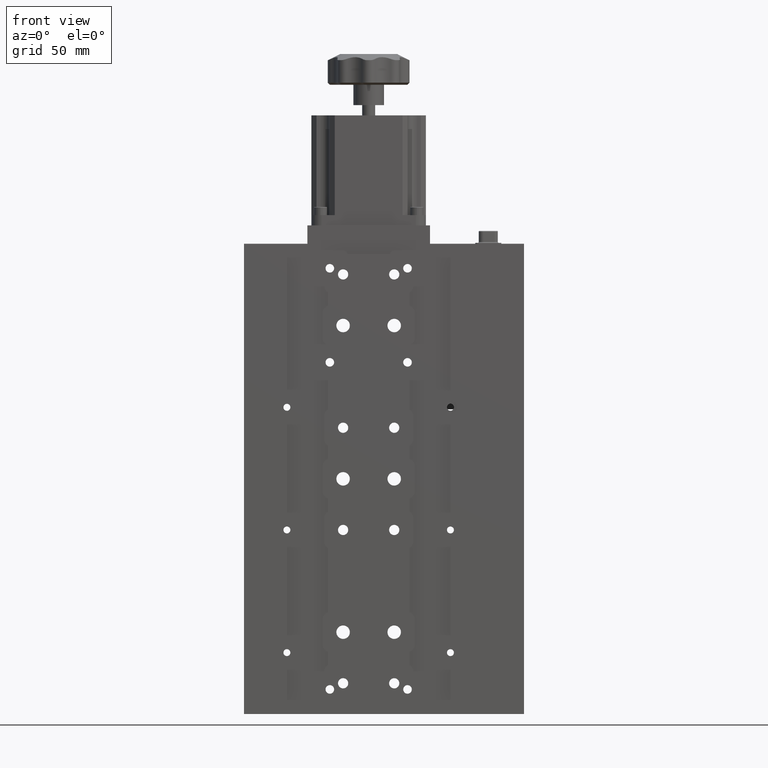
[diagram: clean part render]
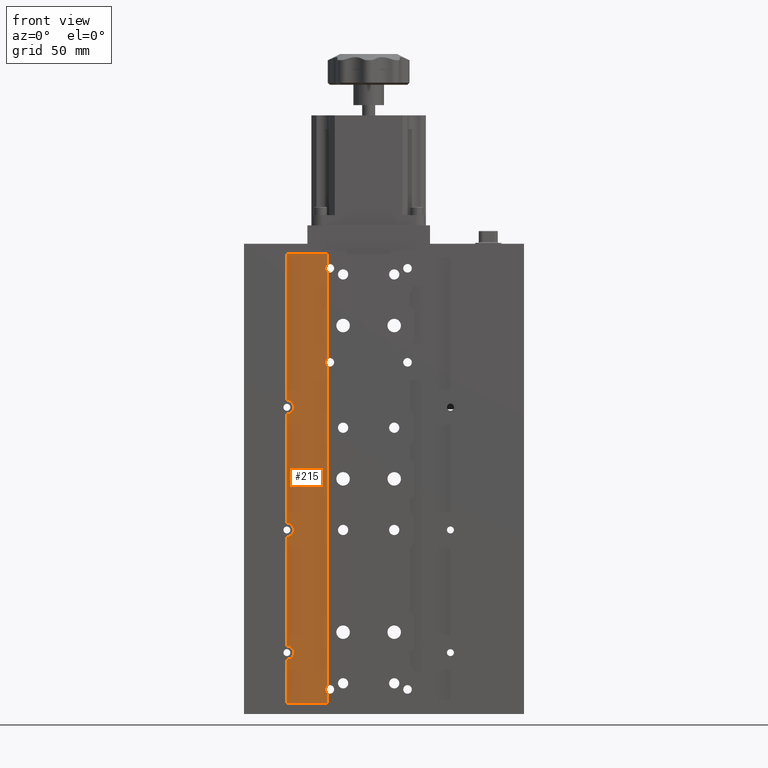
[diagram: same view with one face highlighted and labeled with its STEP entity id]
A machine part, front view. The second image highlights one B-rep face of the part: STEP entity #215.
In plain terms, the highlighted planar face has unit normal (-0, 1, 0).
Its self-contained STEP definition (entity closure, byte-faithful):
#215 = ADVANCED_FACE ( 'NONE', ( #33118 ), #24388, .F. ) ;
#288 = CARTESIAN_POINT ( 'NONE',  ( -50.61080835603990400, -8.917650620647954400, 35.00000000000000700 ) ) ;
#973 = EDGE_CURVE ( 'NONE', #18560, #3282, #33383, .T. ) ;
#1189 = ORIENTED_EDGE ( 'NONE', *, *, #17948, .T. ) ;
#1246 = CIRCLE ( 'NONE', #11401, 2.099999999999990800 ) ;
#1788 = EDGE_CURVE ( 'NONE', #3776, #18560, #1246, .T. ) ;
#2381 = LINE ( 'NONE', #27550, #17168 ) ;
#3166 = LINE ( 'NONE', #24925, #25836 ) ;
#3273 = DIRECTION ( 'NONE',  ( 0.0000000000000000000, 0.0000000000000000000, 1.000000000000000000 ) ) ;
#3282 = VERTEX_POINT ( 'NONE', #31381 ) ;
#3353 = EDGE_CURVE ( 'NONE', #27279, #25282, #20504, .T. ) ;
#3776 = VERTEX_POINT ( 'NONE', #24983 ) ;
#3837 = DIRECTION ( 'NONE',  ( -3.689503073101735200E-032, 1.000000000000000000, 0.0000000000000000000 ) ) ;
#3891 = CARTESIAN_POINT ( 'NONE',  ( -29.61080835603996400, -8.917650620647949100, 103.0000000000000000 ) ) ;
#3993 = EDGE_CURVE ( 'NONE', #30300, #16892, #30594, .T. ) ;
#4022 = VECTOR ( 'NONE', #19162, 1000.000000000000000 ) ;
#4178 = CARTESIAN_POINT ( 'NONE',  ( -29.61080835603995700, -8.917650620647943800, -103.0000000000000000 ) ) ;
#4345 = EDGE_CURVE ( 'NONE', #22951, #3776, #34682, .T. ) ;
#4515 = CARTESIAN_POINT ( 'NONE',  ( -50.61080835603996100, -8.917650620647949100, -110.0000000000000000 ) ) ;
#4702 = CARTESIAN_POINT ( 'NONE',  ( -50.61080835603996100, -8.917650620647949100, 38.25000000000000000 ) ) ;
#5005 = CARTESIAN_POINT ( 'NONE',  ( -30.61080835603995700, -8.917650620647949100, -104.8466185312619200 ) ) ;
#5020 = CARTESIAN_POINT ( 'NONE',  ( -50.61080835603996100, -8.917650620647954400, 110.0000000000000000 ) ) ;
#5247 = AXIS2_PLACEMENT_3D ( 'NONE', #9517, #30194, #12472 ) ;
#5400 = CARTESIAN_POINT ( 'NONE',  ( -29.61080835603996400, -8.917650620647943800, 57.00000000000000700 ) ) ;
#5629 = ORIENTED_EDGE ( 'NONE', *, *, #23997, .T. ) ;
#6175 = VERTEX_POINT ( 'NONE', #4515 ) ;
#6330 = EDGE_CURVE ( 'NONE', #33207, #34487, #36355, .T. ) ;
#6700 = CARTESIAN_POINT ( 'NONE',  ( -30.61080835603995700, -8.917650620647949100, 104.8466185312619200 ) ) ;
#6855 = DIRECTION ( 'NONE',  ( 0.0000000000000000000, 0.0000000000000000000, 1.000000000000000000 ) ) ;
#7109 = DIRECTION ( 'NONE',  ( 0.0000000000000000000, 0.0000000000000000000, 1.000000000000000000 ) ) ;
#7180 = ORIENTED_EDGE ( 'NONE', *, *, #20699, .T. ) ;
#7182 = DIRECTION ( 'NONE',  ( 0.0000000000000000000, 0.0000000000000000000, -1.000000000000000000 ) ) ;
#7416 = ORIENTED_EDGE ( 'NONE', *, *, #1788, .T. ) ;
#7817 = VECTOR ( 'NONE', #29505, 1000.000000000000000 ) ;
#8369 = DIRECTION ( 'NONE',  ( 0.0000000000000000000, 0.0000000000000000000, 1.000000000000000000 ) ) ;
#8756 = CARTESIAN_POINT ( 'NONE',  ( -30.61080835603996400, -8.917650620647949100, -150.0780488547035000 ) ) ;
#9289 = ORIENTED_EDGE ( 'NONE', *, *, #6330, .T. ) ;
#9517 = CARTESIAN_POINT ( 'NONE',  ( -50.61080835603990400, -8.917650620647949100, -84.99999999999998600 ) ) ;
#9725 = DIRECTION ( 'NONE',  ( 1.000000000000000000, -3.689503073101735200E-032, 0.0000000000000000000 ) ) ;
#10942 = DIRECTION ( 'NONE',  ( 0.0000000000000000000, 0.0000000000000000000, -1.000000000000000000 ) ) ;
#11158 = CARTESIAN_POINT ( 'NONE',  ( -30.61080835603995700, -8.917650620647943800, -110.0000000000000000 ) ) ;
#11307 = VECTOR ( 'NONE', #11707, 1000.000000000000000 ) ;
#11401 = AXIS2_PLACEMENT_3D ( 'NONE', #5400, #26060, #8369 ) ;
#11707 = DIRECTION ( 'NONE',  ( 0.0000000000000000000, 0.0000000000000000000, 1.000000000000000000 ) ) ;
#12000 = ORIENTED_EDGE ( 'NONE', *, *, #12457, .T. ) ;
#12243 = LINE ( 'NONE', #8756, #11307 ) ;
#12457 = EDGE_CURVE ( 'NONE', #37873, #33207, #20998, .T. ) ;
#12472 = DIRECTION ( 'NONE',  ( 0.0000000000000000000, 0.0000000000000000000, 1.000000000000000000 ) ) ;
#13178 = DIRECTION ( 'NONE',  ( 0.0000000000000000000, 0.0000000000000000000, 1.000000000000000000 ) ) ;
#13842 = ORIENTED_EDGE ( 'NONE', *, *, #973, .T. ) ;
#13870 = CARTESIAN_POINT ( 'NONE',  ( -50.61080835603996100, -8.917650620647954400, -28.24999999999998200 ) ) ;
#14129 = DIRECTION ( 'NONE',  ( -3.689503073101735200E-032, 1.000000000000000000, 0.0000000000000000000 ) ) ;
#14721 = DIRECTION ( 'NONE',  ( 0.0000000000000000000, 0.0000000000000000000, 1.000000000000000000 ) ) ;
#14823 = VECTOR ( 'NONE', #35482, 1000.000000000000000 ) ;
#15946 = CARTESIAN_POINT ( 'NONE',  ( -50.61080835603996100, -8.917650620647954400, -21.74999999999999300 ) ) ;
#16150 = CIRCLE ( 'NONE', #18986, 2.099999999999990800 ) ;
#16702 = EDGE_CURVE ( 'NONE', #3282, #30300, #16150, .T. ) ;
#16892 = VERTEX_POINT ( 'NONE', #28324 ) ;
#17168 = VECTOR ( 'NONE', #9725, 1000.000000000000000 ) ;
#17948 = EDGE_CURVE ( 'NONE', #32640, #22951, #23857, .T. ) ;
#18071 = ORIENTED_EDGE ( 'NONE', *, *, #37714, .T. ) ;
#18547 = ORIENTED_EDGE ( 'NONE', *, *, #22078, .T. ) ;
#18560 = VERTEX_POINT ( 'NONE', #22340 ) ;
#18855 = VERTEX_POINT ( 'NONE', #30353 ) ;
#18907 = VECTOR ( 'NONE', #14721, 1000.000000000000000 ) ;
#18986 = AXIS2_PLACEMENT_3D ( 'NONE', #3891, #24571, #6855 ) ;
#19162 = DIRECTION ( 'NONE',  ( 1.000000000000000000, -3.689503073101735200E-032, 0.0000000000000000000 ) ) ;
#19184 = ORIENTED_EDGE ( 'NONE', *, *, #3353, .T. ) ;
#19655 = ORIENTED_EDGE ( 'NONE', *, *, #28209, .F. ) ;
#20270 = ORIENTED_EDGE ( 'NONE', *, *, #16702, .T. ) ;
#20322 = VERTEX_POINT ( 'NONE', #25978 ) ;
#20504 = CIRCLE ( 'NONE', #23504, 3.249999999999996000 ) ;
#20546 = CARTESIAN_POINT ( 'NONE',  ( -50.61080835603996100, -8.917650620647954400, 110.0000000000000000 ) ) ;
#20699 = EDGE_CURVE ( 'NONE', #25282, #18855, #3166, .T. ) ;
#20708 = CARTESIAN_POINT ( 'NONE',  ( -30.61080835603996400, -8.917650620647949100, -150.0780488547035000 ) ) ;
#20988 = DIRECTION ( 'NONE',  ( -3.689503073101735200E-032, 1.000000000000000000, 0.0000000000000000000 ) ) ;
#20998 = LINE ( 'NONE', #5020, #27954 ) ;
#21372 = EDGE_CURVE ( 'NONE', #6175, #21997, #34542, .T. ) ;
#21510 = CARTESIAN_POINT ( 'NONE',  ( -50.61080835603996100, -8.917650620647954400, 110.0000000000000000 ) ) ;
#21783 = EDGE_LOOP ( 'NONE', ( #12000, #9289, #5629, #19184, #7180, #18071, #18547, #37944, #32270, #1189, #27159, #7416, #13842, #20270, #25411, #19655 ) ) ;
#21997 = VERTEX_POINT ( 'NONE', #11158 ) ;
#22078 = EDGE_CURVE ( 'NONE', #20322, #6175, #31218, .T. ) ;
#22214 = AXIS2_PLACEMENT_3D ( 'NONE', #21510, #3837, #24507 ) ;
#22340 = CARTESIAN_POINT ( 'NONE',  ( -30.61080835603996400, -8.917650620647949100, 58.84661853126196000 ) ) ;
#22951 = VERTEX_POINT ( 'NONE', #27767 ) ;
#23504 = AXIS2_PLACEMENT_3D ( 'NONE', #31892, #14129, #34860 ) ;
#23857 = CIRCLE ( 'NONE', #27744, 2.099999999999990800 ) ;
#23997 = EDGE_CURVE ( 'NONE', #34487, #27279, #38334, .T. ) ;
#24388 = PLANE ( 'NONE',  #22214 ) ;
#24507 = DIRECTION ( 'NONE',  ( 0.0000000000000000000, 0.0000000000000000000, 1.000000000000000000 ) ) ;
#24571 = DIRECTION ( 'NONE',  ( -3.689503073101735200E-032, 1.000000000000000000, 0.0000000000000000000 ) ) ;
#24698 = CIRCLE ( 'NONE', #5247, 3.250000000000002700 ) ;
#24851 = DIRECTION ( 'NONE',  ( -3.689503073101735200E-032, 1.000000000000000000, 0.0000000000000000000 ) ) ;
#24925 = CARTESIAN_POINT ( 'NONE',  ( -50.61080835603996100, -8.917650620647954400, 110.0000000000000000 ) ) ;
#24983 = CARTESIAN_POINT ( 'NONE',  ( -30.61080835603995700, -8.917650620647949100, 55.15338146873809700 ) ) ;
#25282 = VERTEX_POINT ( 'NONE', #13870 ) ;
#25411 = ORIENTED_EDGE ( 'NONE', *, *, #3993, .T. ) ;
#25836 = VECTOR ( 'NONE', #7182, 1000.000000000000000 ) ;
#25978 = CARTESIAN_POINT ( 'NONE',  ( -50.61080835603996100, -8.917650620647954400, -88.25000000000000000 ) ) ;
#26060 = DIRECTION ( 'NONE',  ( -3.689503073101735200E-032, 1.000000000000000000, 0.0000000000000000000 ) ) ;
#27159 = ORIENTED_EDGE ( 'NONE', *, *, #4345, .T. ) ;
#27279 = VERTEX_POINT ( 'NONE', #15946 ) ;
#27550 = CARTESIAN_POINT ( 'NONE',  ( -50.61080835603996100, -8.917650620647954400, 110.0000000000000000 ) ) ;
#27744 = AXIS2_PLACEMENT_3D ( 'NONE', #4178, #24851, #7109 ) ;
#27767 = CARTESIAN_POINT ( 'NONE',  ( -30.61080835603995700, -8.917650620647949100, -101.1533814687380600 ) ) ;
#27954 = VECTOR ( 'NONE', #10942, 1000.000000000000000 ) ;
#27966 = CARTESIAN_POINT ( 'NONE',  ( -50.61080835603996100, -8.917650620647954400, 110.0000000000000000 ) ) ;
#28122 = CARTESIAN_POINT ( 'NONE',  ( -50.61080835603996100, -8.917650620647949100, -110.0000000000000000 ) ) ;
#28209 = EDGE_CURVE ( 'NONE', #37873, #16892, #2381, .T. ) ;
#28324 = CARTESIAN_POINT ( 'NONE',  ( -30.61080835603995700, -8.917650620647949100, 110.0000000000000000 ) ) ;
#28885 = CARTESIAN_POINT ( 'NONE',  ( -50.61080835603996100, -8.917650620647954400, 110.0000000000000000 ) ) ;
#29505 = DIRECTION ( 'NONE',  ( 0.0000000000000000000, 0.0000000000000000000, -1.000000000000000000 ) ) ;
#30194 = DIRECTION ( 'NONE',  ( -3.689503073101735200E-032, 1.000000000000000000, 0.0000000000000000000 ) ) ;
#30293 = VECTOR ( 'NONE', #35085, 1000.000000000000000 ) ;
#30300 = VERTEX_POINT ( 'NONE', #6700 ) ;
#30353 = CARTESIAN_POINT ( 'NONE',  ( -50.61080835603996100, -8.917650620647954400, -81.74999999999998600 ) ) ;
#30594 = LINE ( 'NONE', #20708, #14823 ) ;
#30616 = EDGE_CURVE ( 'NONE', #21997, #32640, #12243, .T. ) ;
#31218 = LINE ( 'NONE', #28885, #30293 ) ;
#31381 = CARTESIAN_POINT ( 'NONE',  ( -30.61080835603995700, -8.917650620647943800, 101.1533814687380600 ) ) ;
#31892 = CARTESIAN_POINT ( 'NONE',  ( -50.61080835603990400, -8.917650620647949100, -24.99999999999998600 ) ) ;
#32270 = ORIENTED_EDGE ( 'NONE', *, *, #30616, .T. ) ;
#32443 = VECTOR ( 'NONE', #13178, 1000.000000000000000 ) ;
#32483 = CARTESIAN_POINT ( 'NONE',  ( -30.61080835603996400, -8.917650620647949100, -150.0780488547035000 ) ) ;
#32640 = VERTEX_POINT ( 'NONE', #5005 ) ;
#33118 = FACE_OUTER_BOUND ( 'NONE', #21783, .T. ) ;
#33119 = AXIS2_PLACEMENT_3D ( 'NONE', #288, #20988, #3273 ) ;
#33207 = VERTEX_POINT ( 'NONE', #4702 ) ;
#33383 = LINE ( 'NONE', #33890, #32443 ) ;
#33890 = CARTESIAN_POINT ( 'NONE',  ( -30.61080835603996400, -8.917650620647949100, -150.0780488547035000 ) ) ;
#34487 = VERTEX_POINT ( 'NONE', #37518 ) ;
#34542 = LINE ( 'NONE', #28122, #4022 ) ;
#34682 = LINE ( 'NONE', #32483, #18907 ) ;
#34860 = DIRECTION ( 'NONE',  ( 0.0000000000000000000, 0.0000000000000000000, 1.000000000000000000 ) ) ;
#35085 = DIRECTION ( 'NONE',  ( 0.0000000000000000000, 0.0000000000000000000, -1.000000000000000000 ) ) ;
#35482 = DIRECTION ( 'NONE',  ( 0.0000000000000000000, 0.0000000000000000000, 1.000000000000000000 ) ) ;
#36355 = CIRCLE ( 'NONE', #33119, 3.249999999999996000 ) ;
#37518 = CARTESIAN_POINT ( 'NONE',  ( -50.61080835603996100, -8.917650620647949100, 31.75000000000001400 ) ) ;
#37714 = EDGE_CURVE ( 'NONE', #18855, #20322, #24698, .T. ) ;
#37873 = VERTEX_POINT ( 'NONE', #27966 ) ;
#37944 = ORIENTED_EDGE ( 'NONE', *, *, #21372, .T. ) ;
#38334 = LINE ( 'NONE', #20546, #7817 ) ;